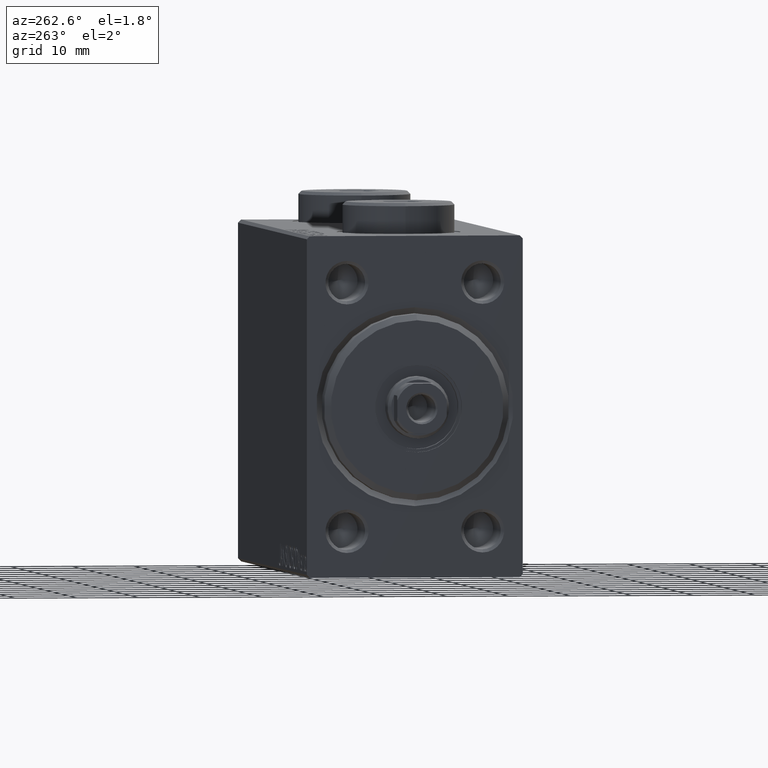
[diagram: clean part render]
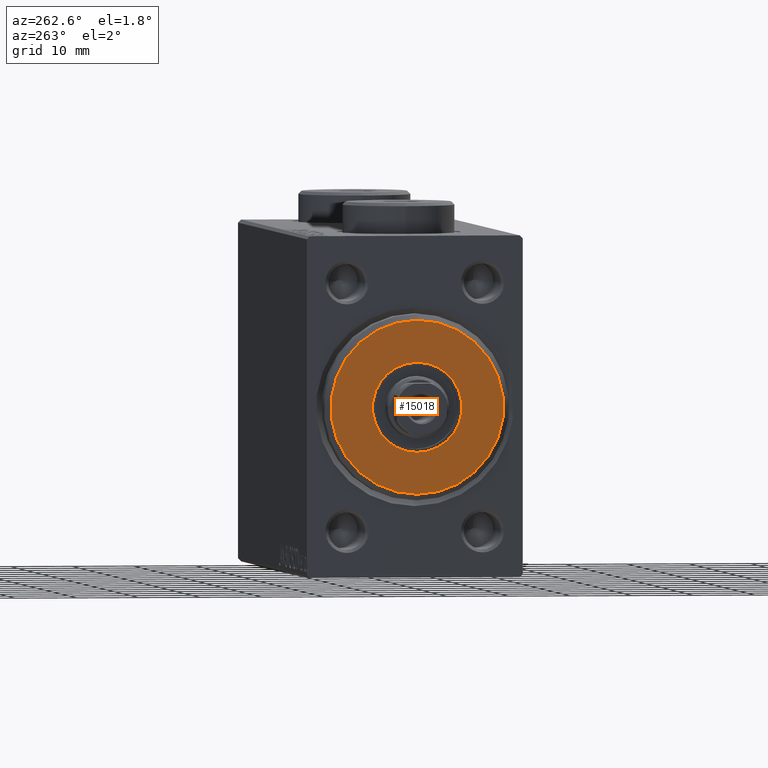
[diagram: same view with one face highlighted and labeled with its STEP entity id]
A machine part, auxiliary view. The second image highlights one B-rep face of the part: STEP entity #15018.
In plain terms, the highlighted planar face has unit normal (-1, 0, 0).
Its self-contained STEP definition (entity closure, byte-faithful):
#507 = DIRECTION ( 'NONE',  ( 1.000000000000000000, 0.000000000000000000, 0.000000000000000000 ) ) ;
#915 = EDGE_CURVE ( 'NONE', #25437, #14496, #32349, .T. ) ;
#1479 = AXIS2_PLACEMENT_3D ( 'NONE', #10178, #44937, #23791 ) ;
#3156 = CARTESIAN_POINT ( 'NONE',  ( 3.000000000000000000, 1.775737858763662015E-15, -13.99999999999999645 ) ) ;
#3211 = ORIENTED_EDGE ( 'NONE', *, *, #18885, .T. ) ;
#4977 = CARTESIAN_POINT ( 'NONE',  ( 3.000000000000000000, 0.000000000000000000, 0.000000000000000000 ) ) ;
#5406 = AXIS2_PLACEMENT_3D ( 'NONE', #4977, #15605, #8663 ) ;
#5654 = EDGE_LOOP ( 'NONE', ( #34127, #27247 ) ) ;
#7040 = EDGE_LOOP ( 'NONE', ( #36975, #3211 ) ) ;
#7372 = DIRECTION ( 'NONE',  ( 1.000000000000000000, -0.000000000000000000, 0.000000000000000000 ) ) ;
#8663 = DIRECTION ( 'NONE',  ( 0.000000000000000000, 0.000000000000000000, -1.000000000000000000 ) ) ;
#9149 = VERTEX_POINT ( 'NONE', #3156 ) ;
#9186 = CIRCLE ( 'NONE', #15107, 13.99999999999999645 ) ;
#10178 = CARTESIAN_POINT ( 'NONE',  ( 3.000000000000000000, 0.000000000000000000, 0.000000000000000000 ) ) ;
#12794 = AXIS2_PLACEMENT_3D ( 'NONE', #24705, #507, #20560 ) ;
#14496 = VERTEX_POINT ( 'NONE', #15669 ) ;
#14526 = AXIS2_PLACEMENT_3D ( 'NONE', #31805, #7372, #35451 ) ;
#15018 = ADVANCED_FACE ( 'NONE', ( #22504, #36043 ), #40190, .T. ) ;
#15056 = DIRECTION ( 'NONE',  ( 1.000000000000000000, -0.000000000000000000, 0.000000000000000000 ) ) ;
#15107 = AXIS2_PLACEMENT_3D ( 'NONE', #25652, #15056, #25878 ) ;
#15553 = EDGE_CURVE ( 'NONE', #14496, #25437, #39248, .T. ) ;
#15605 = DIRECTION ( 'NONE',  ( 1.000000000000000000, -0.000000000000000000, 0.000000000000000000 ) ) ;
#15669 = CARTESIAN_POINT ( 'NONE',  ( 3.000000000000000000, 8.878689293818310074E-16, 7.249999999999999112 ) ) ;
#18885 = EDGE_CURVE ( 'NONE', #9149, #20584, #9186, .T. ) ;
#20560 = DIRECTION ( 'NONE',  ( 0.000000000000000000, 0.000000000000000000, -1.000000000000000000 ) ) ;
#20584 = VERTEX_POINT ( 'NONE', #27375 ) ;
#22504 = FACE_OUTER_BOUND ( 'NONE', #7040, .T. ) ;
#23791 = DIRECTION ( 'NONE',  ( 0.000000000000000000, 0.000000000000000000, -1.000000000000000000 ) ) ;
#24705 = CARTESIAN_POINT ( 'NONE',  ( 3.000000000000000000, 0.000000000000000000, 0.000000000000000000 ) ) ;
#25437 = VERTEX_POINT ( 'NONE', #30223 ) ;
#25652 = CARTESIAN_POINT ( 'NONE',  ( 3.000000000000000000, 0.000000000000000000, 0.000000000000000000 ) ) ;
#25878 = DIRECTION ( 'NONE',  ( 0.000000000000000000, 0.000000000000000000, -1.000000000000000000 ) ) ;
#27247 = ORIENTED_EDGE ( 'NONE', *, *, #15553, .F. ) ;
#27375 = CARTESIAN_POINT ( 'NONE',  ( 3.000000000000000000, 0.000000000000000000, 13.99999999999999645 ) ) ;
#29592 = EDGE_CURVE ( 'NONE', #20584, #9149, #43170, .T. ) ;
#30223 = CARTESIAN_POINT ( 'NONE',  ( 3.000000000000000000, 0.000000000000000000, -7.249999999999999112 ) ) ;
#31805 = CARTESIAN_POINT ( 'NONE',  ( 3.000000000000000000, 0.000000000000000000, 0.000000000000000000 ) ) ;
#32349 = CIRCLE ( 'NONE', #1479, 7.249999999999999112 ) ;
#34127 = ORIENTED_EDGE ( 'NONE', *, *, #915, .F. ) ;
#35451 = DIRECTION ( 'NONE',  ( 0.000000000000000000, 0.000000000000000000, -1.000000000000000000 ) ) ;
#36043 = FACE_BOUND ( 'NONE', #5654, .T. ) ;
#36975 = ORIENTED_EDGE ( 'NONE', *, *, #29592, .T. ) ;
#39248 = CIRCLE ( 'NONE', #12794, 7.249999999999999112 ) ;
#40190 = PLANE ( 'NONE',  #5406 ) ;
#43170 = CIRCLE ( 'NONE', #14526, 13.99999999999999645 ) ;
#44937 = DIRECTION ( 'NONE',  ( 1.000000000000000000, 0.000000000000000000, 0.000000000000000000 ) ) ;